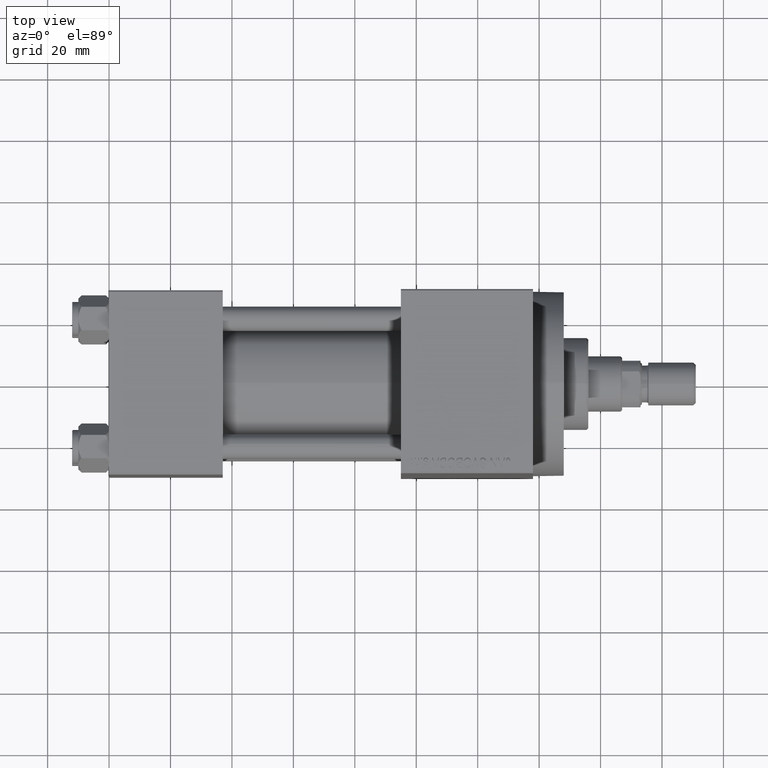
[diagram: clean part render]
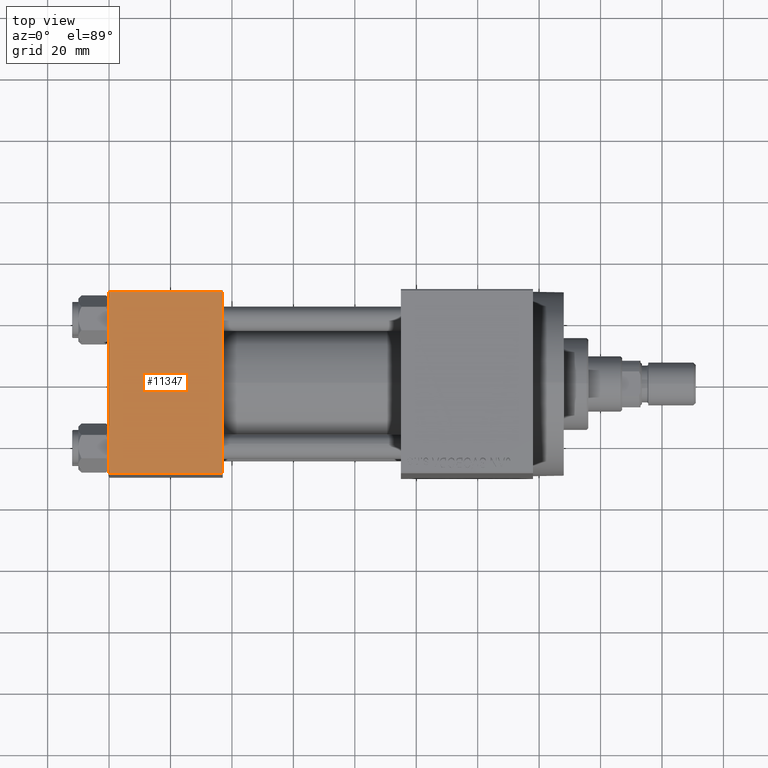
[diagram: same view with one face highlighted and labeled with its STEP entity id]
A machine part, top view. The second image highlights one B-rep face of the part: STEP entity #11347.
In plain terms, the highlighted planar face has unit normal (0, 0, -1).
Its self-contained STEP definition (entity closure, byte-faithful):
#284 = EDGE_CURVE ( 'NONE', #34982, #13328, #13160, .T. ) ;
#463 = ORIENTED_EDGE ( 'NONE', *, *, #16436, .T. ) ;
#805 = LINE ( 'NONE', #41342, #40557 ) ;
#1045 = FACE_OUTER_BOUND ( 'NONE', #16470, .T. ) ;
#2012 = VERTEX_POINT ( 'NONE', #22028 ) ;
#2052 = DIRECTION ( 'NONE',  ( -1.000000000000000000, 0.000000000000000000, 0.000000000000000000 ) ) ;
#5365 = LINE ( 'NONE', #45193, #10669 ) ;
#7012 = ORIENTED_EDGE ( 'NONE', *, *, #37717, .T. ) ;
#8296 = DIRECTION ( 'NONE',  ( 0.000000000000000000, -1.000000000000000000, -1.156482317317871725E-16 ) ) ;
#10669 = VECTOR ( 'NONE', #31183, 1000.000000000000000 ) ;
#11347 = ADVANCED_FACE ( 'NONE', ( #1045 ), #19399, .F. ) ;
#11404 = CARTESIAN_POINT ( 'NONE',  ( 37.00000000000000000, -29.49999999999998579, 29.99999999999999289 ) ) ;
#13160 = LINE ( 'NONE', #31747, #15022 ) ;
#13328 = VERTEX_POINT ( 'NONE', #15183 ) ;
#15022 = VECTOR ( 'NONE', #2052, 1000.000000000000000 ) ;
#15183 = CARTESIAN_POINT ( 'NONE',  ( 0.000000000000000000, 29.49999999999999289, 30.00000000000000000 ) ) ;
#16436 = EDGE_CURVE ( 'NONE', #2012, #40597, #5365, .T. ) ;
#16470 = EDGE_LOOP ( 'NONE', ( #7012, #463, #26816, #28071 ) ) ;
#19399 = PLANE ( 'NONE',  #21453 ) ;
#21453 = AXIS2_PLACEMENT_3D ( 'NONE', #46167, #30966, #42061 ) ;
#22028 = CARTESIAN_POINT ( 'NONE',  ( 0.000000000000000000, -29.49999999999998579, 29.99999999999999289 ) ) ;
#24815 = CARTESIAN_POINT ( 'NONE',  ( 37.00000000000000000, 29.49999999999999289, 30.00000000000000000 ) ) ;
#26816 = ORIENTED_EDGE ( 'NONE', *, *, #30827, .F. ) ;
#28071 = ORIENTED_EDGE ( 'NONE', *, *, #284, .T. ) ;
#29574 = VECTOR ( 'NONE', #47506, 1000.000000000000000 ) ;
#30827 = EDGE_CURVE ( 'NONE', #34982, #40597, #43902, .T. ) ;
#30966 = DIRECTION ( 'NONE',  ( 0.000000000000000000, 1.156482317317871725E-16, -1.000000000000000000 ) ) ;
#31183 = DIRECTION ( 'NONE',  ( 1.000000000000000000, 0.000000000000000000, 0.000000000000000000 ) ) ;
#31747 = CARTESIAN_POINT ( 'NONE',  ( 0.000000000000000000, 29.49999999999999289, 30.00000000000000000 ) ) ;
#33268 = CARTESIAN_POINT ( 'NONE',  ( 37.00000000000000000, 29.99999999999999289, 30.00000000000000000 ) ) ;
#34982 = VERTEX_POINT ( 'NONE', #24815 ) ;
#37717 = EDGE_CURVE ( 'NONE', #13328, #2012, #805, .T. ) ;
#40557 = VECTOR ( 'NONE', #8296, 1000.000000000000000 ) ;
#40597 = VERTEX_POINT ( 'NONE', #11404 ) ;
#41342 = CARTESIAN_POINT ( 'NONE',  ( 0.000000000000000000, 29.99999999999999289, 30.00000000000000000 ) ) ;
#42061 = DIRECTION ( 'NONE',  ( 0.000000000000000000, 1.000000000000000000, 1.156482317317871725E-16 ) ) ;
#43902 = LINE ( 'NONE', #33268, #29574 ) ;
#45193 = CARTESIAN_POINT ( 'NONE',  ( 37.00000000000000000, -29.50000000000000000, 29.99999999999999289 ) ) ;
#46167 = CARTESIAN_POINT ( 'NONE',  ( 37.00000000000000000, 29.99999999999999289, 30.00000000000000000 ) ) ;
#47506 = DIRECTION ( 'NONE',  ( 0.000000000000000000, -1.000000000000000000, -1.156482317317871725E-16 ) ) ;